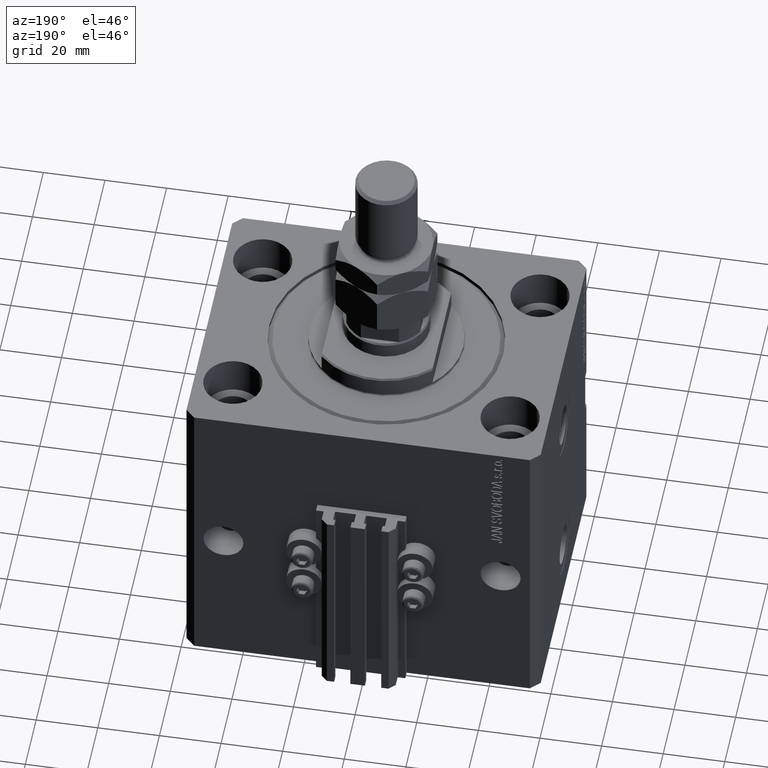
[diagram: clean part render]
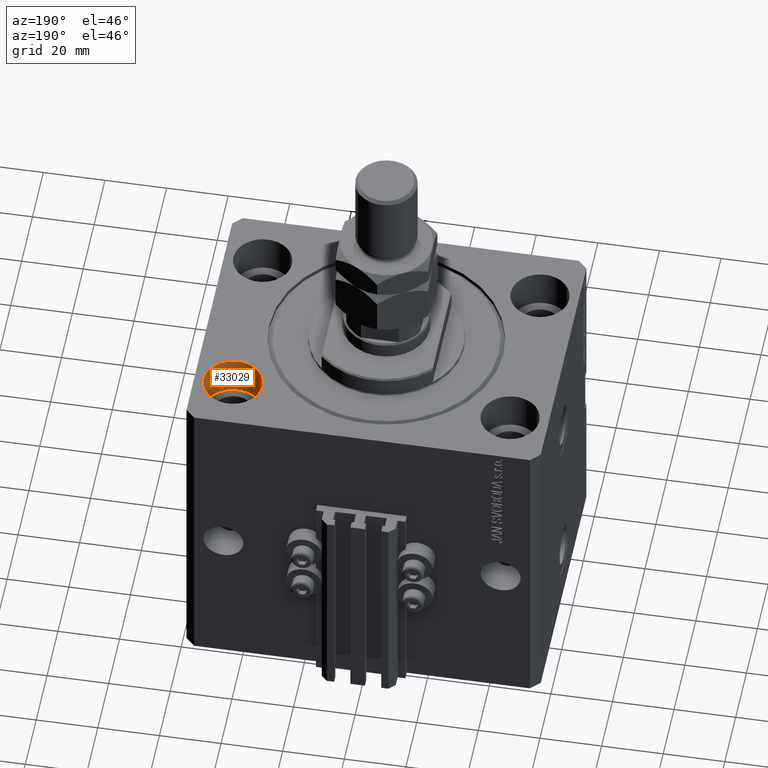
[diagram: same view with one face highlighted and labeled with its STEP entity id]
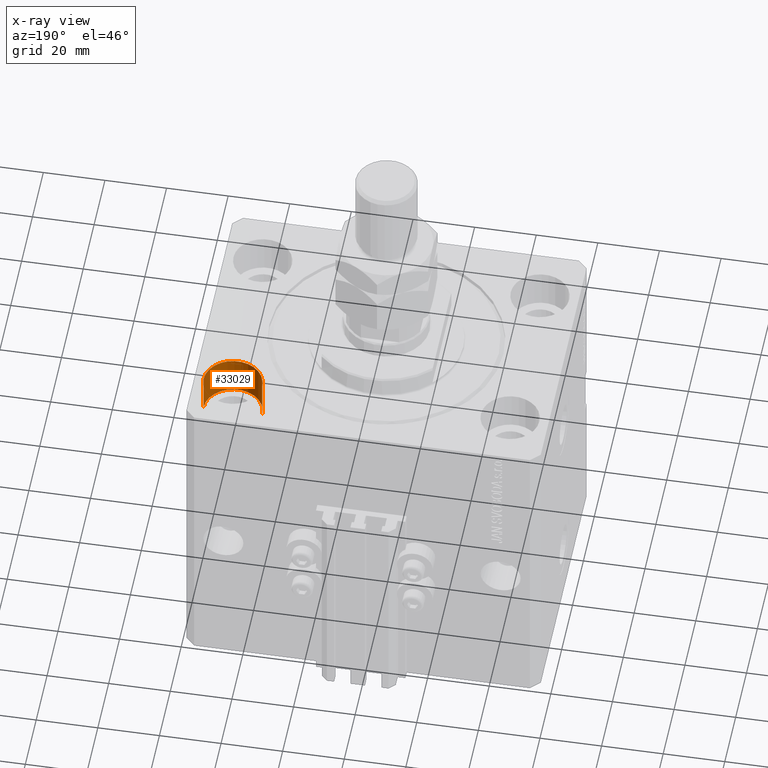
[diagram: x-ray of the same camera — body ghosted, the highlighted face saturated]
A machine part, auxiliary view. The second image highlights one B-rep face of the part: STEP entity #33029.
The next image is the same camera in x-ray: the body ghosted, the highlighted face saturated — about 0% of this face is hidden behind the body in this view.
In plain terms, the highlighted cylindrical surface (edge-blend (fillet) strip) has radius 9.5 mm, axis along (0, 0, 1).
Its self-contained STEP definition (entity closure, byte-faithful):
#3496 = CARTESIAN_POINT ( 'NONE',  ( 45.00000000000000000, 27.50000000000001776, -13.00000000000000000 ) ) ;
#4659 = VERTEX_POINT ( 'NONE', #27657 ) ;
#5168 = AXIS2_PLACEMENT_3D ( 'NONE', #12589, #19996, #16166 ) ;
#7623 = CIRCLE ( 'NONE', #43313, 9.500000000000001776 ) ;
#11619 = CYLINDRICAL_SURFACE ( 'NONE', #37397, 9.500000000000001776 ) ;
#11827 = EDGE_LOOP ( 'NONE', ( #37050, #35170, #28386, #30420 ) ) ;
#12589 = CARTESIAN_POINT ( 'NONE',  ( 45.00000000000000000, 27.50000000000001776, -13.00000000000000000 ) ) ;
#13713 = LINE ( 'NONE', #28476, #49250 ) ;
#15183 = DIRECTION ( 'NONE',  ( -0.000000000000000000, -0.000000000000000000, 1.000000000000000000 ) ) ;
#16166 = DIRECTION ( 'NONE',  ( 1.000000000000000000, 0.000000000000000000, 0.000000000000000000 ) ) ;
#17014 = EDGE_CURVE ( 'NONE', #4659, #29766, #13713, .T. ) ;
#17553 = DIRECTION ( 'NONE',  ( 1.000000000000000000, 0.000000000000000000, 0.000000000000000000 ) ) ;
#19996 = DIRECTION ( 'NONE',  ( 0.000000000000000000, 0.000000000000000000, 1.000000000000000000 ) ) ;
#20530 = VECTOR ( 'NONE', #39296, 1000.000000000000000 ) ;
#20608 = CIRCLE ( 'NONE', #5168, 9.500000000000001776 ) ;
#20851 = DIRECTION ( 'NONE',  ( -0.000000000000000000, -0.000000000000000000, 1.000000000000000000 ) ) ;
#21416 = CARTESIAN_POINT ( 'NONE',  ( 35.50000000000000000, 27.50000000000001776, -13.00000000000000000 ) ) ;
#27657 = CARTESIAN_POINT ( 'NONE',  ( 54.50000000000000000, 27.50000000000001776, -13.00000000000000000 ) ) ;
#28386 = ORIENTED_EDGE ( 'NONE', *, *, #46194, .T. ) ;
#28476 = CARTESIAN_POINT ( 'NONE',  ( 54.50000000000000000, 27.50000000000001776, -13.00000000000000000 ) ) ;
#29766 = VERTEX_POINT ( 'NONE', #42378 ) ;
#30420 = ORIENTED_EDGE ( 'NONE', *, *, #17014, .F. ) ;
#30961 = FACE_OUTER_BOUND ( 'NONE', #11827, .T. ) ;
#32211 = VERTEX_POINT ( 'NONE', #38806 ) ;
#33029 = ADVANCED_FACE ( 'NONE', ( #30961 ), #11619, .F. ) ;
#34768 = DIRECTION ( 'NONE',  ( 1.000000000000000000, 0.000000000000000000, 0.000000000000000000 ) ) ;
#35170 = ORIENTED_EDGE ( 'NONE', *, *, #39015, .T. ) ;
#37050 = ORIENTED_EDGE ( 'NONE', *, *, #40951, .F. ) ;
#37397 = AXIS2_PLACEMENT_3D ( 'NONE', #3496, #15183, #34768 ) ;
#37885 = CARTESIAN_POINT ( 'NONE',  ( 45.00000000000000000, 27.50000000000001776, 0.000000000000000000 ) ) ;
#38060 = VERTEX_POINT ( 'NONE', #39211 ) ;
#38806 = CARTESIAN_POINT ( 'NONE',  ( 35.50000000000000000, 27.50000000000001776, -13.00000000000000000 ) ) ;
#39015 = EDGE_CURVE ( 'NONE', #32211, #38060, #43337, .T. ) ;
#39211 = CARTESIAN_POINT ( 'NONE',  ( 35.50000000000000000, 27.50000000000001776, 0.000000000000000000 ) ) ;
#39296 = DIRECTION ( 'NONE',  ( -0.000000000000000000, -0.000000000000000000, 1.000000000000000000 ) ) ;
#40951 = EDGE_CURVE ( 'NONE', #32211, #4659, #20608, .T. ) ;
#42378 = CARTESIAN_POINT ( 'NONE',  ( 54.50000000000000000, 27.50000000000001776, 0.000000000000000000 ) ) ;
#43313 = AXIS2_PLACEMENT_3D ( 'NONE', #37885, #45228, #17553 ) ;
#43337 = LINE ( 'NONE', #21416, #20530 ) ;
#45228 = DIRECTION ( 'NONE',  ( 0.000000000000000000, 0.000000000000000000, 1.000000000000000000 ) ) ;
#46194 = EDGE_CURVE ( 'NONE', #38060, #29766, #7623, .T. ) ;
#49250 = VECTOR ( 'NONE', #20851, 1000.000000000000000 ) ;